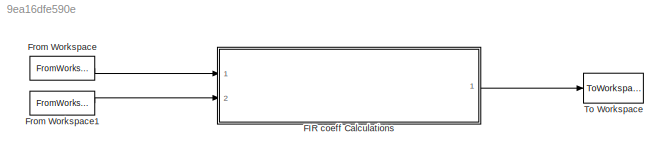
MODEL slx_9ea16dfe590e
KIND model
CONFIG AbsTol = auto
CONFIG EnableMultiTasking = off
CONFIG FixedStep = auto
CONFIG InitFcn = block_verScript;
CONFIG MaxStep = auto
CONFIG MinStep = auto
CONFIG RelTol = 1e-3
CONFIG SampleTimeConstraint = Unconstrained
CONFIG Solver = VariableStepAuto
CONFIG SolverName = VariableStepAuto
CONFIG StartTime = 0.0
CONFIG StopTime = (nSamp - 1)*Ts
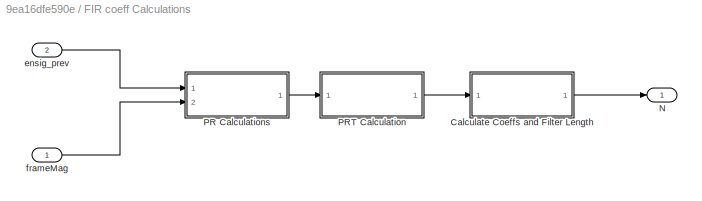
BLOCK [SubSystem] FIR coeff Calculations
  Ports = [2, 1]
  RequestExecContextInheritance = off
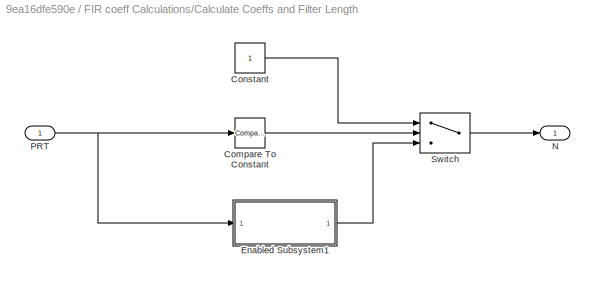
BLOCK [SubSystem] FIR coeff Calculations/Calculate Coeffs and Filter Length
  Ports = [1, 1]
  RequestExecContextInheritance = off
BLOCK [Reference] FIR coeff Calculations/Calculate Coeffs and Filter Length/Compare To Constant  REF=simulink/Logic and Bit
Operations/Compare
To Constant
  Ports = [1, 1]
  SourceBlock = simulink/Logic and Bit\nOperations/Compare\nTo Constant
  SourceProductBaseCode = SL
  SourceProductName = Simulink
  SourceType = Compare To Constant
BLOCK [Constant] FIR coeff Calculations/Calculate Coeffs and Filter Length/Constant
  SampleTime = -1
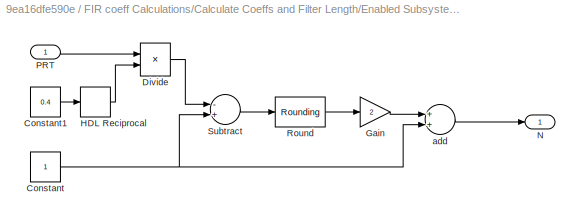
BLOCK [SubSystem] FIR coeff Calculations/Calculate Coeffs and Filter Length/Enabled Subsystem1
  Ports = [1, 1]
  RequestExecContextInheritance = off
  TreatAsAtomicUnit = on
BLOCK [Constant] FIR coeff Calculations/Calculate Coeffs and Filter Length/Enabled Subsystem1/Constant
  SampleTime = -1
BLOCK [Constant] FIR coeff Calculations/Calculate Coeffs and Filter Length/Enabled Subsystem1/Constant1
  SampleTime = -1
  Value = 0.4
BLOCK [Product] FIR coeff Calculations/Calculate Coeffs and Filter Length/Enabled Subsystem1/Divide
  InputSameDT = off
  Inputs = **
  OutDataTypeStr = Inherit: Inherit via internal rule
  Ports = [2, 1]
BLOCK [Gain] FIR coeff Calculations/Calculate Coeffs and Filter Length/Enabled Subsystem1/Gain
  Gain = 2
  OutDataTypeStr = Inherit: Inherit via internal rule
  ParamDataTypeStr = Inherit: Inherit via internal rule
  SaturateOnIntegerOverflow = off
BLOCK [Reciprocal] FIR coeff Calculations/Calculate Coeffs and Filter Length/Enabled Subsystem1/HDL Reciprocal
BLOCK [Outport] FIR coeff Calculations/Calculate Coeffs and Filter Length/Enabled Subsystem1/N
  IconDisplay = Port number
  InitialOutput = 0
BLOCK [Inport] FIR coeff Calculations/Calculate Coeffs and Filter Length/Enabled Subsystem1/PRT
  IconDisplay = Port number
BLOCK [Rounding] FIR coeff Calculations/Calculate Coeffs and Filter Length/Enabled Subsystem1/Round
  Operator = round
BLOCK [Sum] FIR coeff Calculations/Calculate Coeffs and Filter Length/Enabled Subsystem1/Subtract
  InputSameDT = off
  Inputs = -+
  OutDataTypeStr = Inherit: Inherit via internal rule
  Ports = [2, 1]
  SaturateOnIntegerOverflow = off
BLOCK [Sum] FIR coeff Calculations/Calculate Coeffs and Filter Length/Enabled Subsystem1/add
  InputSameDT = off
  OutDataTypeStr = Inherit: Inherit via internal rule
  Ports = [2, 1]
  SaturateOnIntegerOverflow = off
BLOCK [Outport] FIR coeff Calculations/Calculate Coeffs and Filter Length/N
  IconDisplay = Port number
BLOCK [Inport] FIR coeff Calculations/Calculate Coeffs and Filter Length/PRT
  IconDisplay = Port number
BLOCK [Switch] FIR coeff Calculations/Calculate Coeffs and Filter Length/Switch
  Criteria = u2 > Threshold
  InputSameDT = off
  SaturateOnIntegerOverflow = off
BLOCK [Outport] FIR coeff Calculations/N
  IconDisplay = Port number
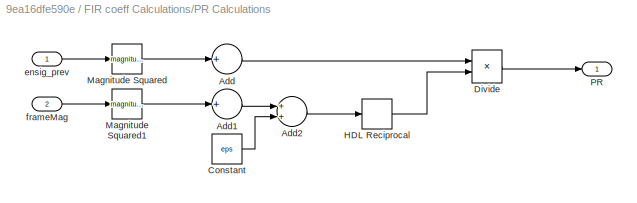
BLOCK [SubSystem] FIR coeff Calculations/PR Calculations
  Ports = [2, 1]
  RequestExecContextInheritance = off
BLOCK [Sum] FIR coeff Calculations/PR Calculations/Add
  InputSameDT = off
  Inputs = +
  OutDataTypeStr = Inherit: Inherit via internal rule
  Ports = [1, 1]
  SaturateOnIntegerOverflow = off
BLOCK [Sum] FIR coeff Calculations/PR Calculations/Add1
  InputSameDT = off
  Inputs = +
  OutDataTypeStr = Inherit: Inherit via internal rule
  Ports = [1, 1]
  SaturateOnIntegerOverflow = off
BLOCK [Sum] FIR coeff Calculations/PR Calculations/Add2
  InputSameDT = off
  OutDataTypeStr = Inherit: Inherit via internal rule
  Ports = [2, 1]
  SaturateOnIntegerOverflow = off
BLOCK [Constant] FIR coeff Calculations/PR Calculations/Constant
  SampleTime = -1
  Value = eps
BLOCK [Product] FIR coeff Calculations/PR Calculations/Divide
  InputSameDT = off
  Inputs = **
  OutDataTypeStr = Inherit: Inherit via internal rule
  Ports = [2, 1]
BLOCK [Reciprocal] FIR coeff Calculations/PR Calculations/HDL Reciprocal
BLOCK [Math] FIR coeff Calculations/PR Calculations/Magnitude Squared
  Operator = magnitude^2
  Ports = [1, 1]
BLOCK [Math] FIR coeff Calculations/PR Calculations/Magnitude Squared1
  Operator = magnitude^2
  Ports = [1, 1]
BLOCK [Outport] FIR coeff Calculations/PR Calculations/PR
  IconDisplay = Port number
BLOCK [Inport] FIR coeff Calculations/PR Calculations/ensig_prev
  IconDisplay = Port number
BLOCK [Inport] FIR coeff Calculations/PR Calculations/frameMag
  IconDisplay = Port number
  Port = 2
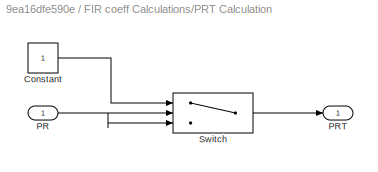
BLOCK [SubSystem] FIR coeff Calculations/PRT Calculation
  Ports = [1, 1]
  RequestExecContextInheritance = off
BLOCK [Constant] FIR coeff Calculations/PRT Calculation/Constant
  SampleTime = -1
BLOCK [Inport] FIR coeff Calculations/PRT Calculation/PR
  IconDisplay = Port number
BLOCK [Outport] FIR coeff Calculations/PRT Calculation/PRT
  IconDisplay = Port number
BLOCK [Switch] FIR coeff Calculations/PRT Calculation/Switch
  InputSameDT = off
  SaturateOnIntegerOverflow = off
  Threshold = 0.4
BLOCK [Inport] FIR coeff Calculations/ensig_prev
  IconDisplay = Port number
  Port = 2
BLOCK [Inport] FIR coeff Calculations/frameMag
  IconDisplay = Port number
BLOCK [FromWorkspace] From Workspace
  SampleTime = Ts
  VariableName = frameMagSim
  ZeroCross = on
BLOCK [FromWorkspace] From Workspace1
  SampleTime = Ts
  VariableName = ensigSim
  ZeroCross = on
BLOCK [ToWorkspace] To Workspace
  FixptAsFi = on
  MaxDataPoints = inf
  Ports = [1]
  SampleTime = -1
  SaveFormat = Timeseries
  VariableName = N_Out
LINE FIR coeff Calculations/Calculate Coeffs and Filter Length/Compare To Constant:1 -> FIR coeff Calculations/Calculate Coeffs and Filter Length/Switch:2
LINE FIR coeff Calculations/Calculate Coeffs and Filter Length/Constant:1 -> FIR coeff Calculations/Calculate Coeffs and Filter Length/Switch:1
LINE FIR coeff Calculations/Calculate Coeffs and Filter Length/Enabled Subsystem1/Constant1:1 -> FIR coeff Calculations/Calculate Coeffs and Filter Length/Enabled Subsystem1/HDL Reciprocal:1
NET FIR coeff Calculations/Calculate Coeffs and Filter Length/Enabled Subsystem1/Constant:1 -> FIR coeff Calculations/Calculate Coeffs and Filter Length/Enabled Subsystem1/Subtract:2, FIR coeff Calculations/Calculate Coeffs and Filter Length/Enabled Subsystem1/add:2
LINE FIR coeff Calculations/Calculate Coeffs and Filter Length/Enabled Subsystem1/Divide:1 -> FIR coeff Calculations/Calculate Coeffs and Filter Length/Enabled Subsystem1/Subtract:1
LINE FIR coeff Calculations/Calculate Coeffs and Filter Length/Enabled Subsystem1/Gain:1 -> FIR coeff Calculations/Calculate Coeffs and Filter Length/Enabled Subsystem1/add:1
LINE FIR coeff Calculations/Calculate Coeffs and Filter Length/Enabled Subsystem1/HDL Reciprocal:1 -> FIR coeff Calculations/Calculate Coeffs and Filter Length/Enabled Subsystem1/Divide:2
LINE FIR coeff Calculations/Calculate Coeffs and Filter Length/Enabled Subsystem1/PRT:1 -> FIR coeff Calculations/Calculate Coeffs and Filter Length/Enabled Subsystem1/Divide:1
LINE FIR coeff Calculations/Calculate Coeffs and Filter Length/Enabled Subsystem1/Round:1 -> FIR coeff Calculations/Calculate Coeffs and Filter Length/Enabled Subsystem1/Gain:1
LINE FIR coeff Calculations/Calculate Coeffs and Filter Length/Enabled Subsystem1/Subtract:1 -> FIR coeff Calculations/Calculate Coeffs and Filter Length/Enabled Subsystem1/Round:1
LINE FIR coeff Calculations/Calculate Coeffs and Filter Length/Enabled Subsystem1/add:1 -> FIR coeff Calculations/Calculate Coeffs and Filter Length/Enabled Subsystem1/N:1
LINE FIR coeff Calculations/Calculate Coeffs and Filter Length/Enabled Subsystem1:1 -> FIR coeff Calculations/Calculate Coeffs and Filter Length/Switch:3
NET FIR coeff Calculations/Calculate Coeffs and Filter Length/PRT:1 -> FIR coeff Calculations/Calculate Coeffs and Filter Length/Compare To Constant:1, FIR coeff Calculations/Calculate Coeffs and Filter Length/Enabled Subsystem1:1
LINE FIR coeff Calculations/Calculate Coeffs and Filter Length/Switch:1 -> FIR coeff Calculations/Calculate Coeffs and Filter Length/N:1
LINE FIR coeff Calculations/Calculate Coeffs and Filter Length:1 -> FIR coeff Calculations/N:1
LINE FIR coeff Calculations/PR Calculations/Add1:1 -> FIR coeff Calculations/PR Calculations/Add2:1
LINE FIR coeff Calculations/PR Calculations/Add2:1 -> FIR coeff Calculations/PR Calculations/HDL Reciprocal:1
LINE FIR coeff Calculations/PR Calculations/Add:1 -> FIR coeff Calculations/PR Calculations/Divide:1
LINE FIR coeff Calculations/PR Calculations/Constant:1 -> FIR coeff Calculations/PR Calculations/Add2:2
LINE FIR coeff Calculations/PR Calculations/Divide:1 -> FIR coeff Calculations/PR Calculations/PR:1
LINE FIR coeff Calculations/PR Calculations/HDL Reciprocal:1 -> FIR coeff Calculations/PR Calculations/Divide:2
LINE FIR coeff Calculations/PR Calculations/Magnitude Squared1:1 -> FIR coeff Calculations/PR Calculations/Add1:1
LINE FIR coeff Calculations/PR Calculations/Magnitude Squared:1 -> FIR coeff Calculations/PR Calculations/Add:1
LINE FIR coeff Calculations/PR Calculations/ensig_prev:1 -> FIR coeff Calculations/PR Calculations/Magnitude Squared:1
LINE FIR coeff Calculations/PR Calculations/frameMag:1 -> FIR coeff Calculations/PR Calculations/Magnitude Squared1:1
LINE FIR coeff Calculations/PR Calculations:1 -> FIR coeff Calculations/PRT Calculation:1
LINE FIR coeff Calculations/PRT Calculation/Constant:1 -> FIR coeff Calculations/PRT Calculation/Switch:1
NET FIR coeff Calculations/PRT Calculation/PR:1 -> FIR coeff Calculations/PRT Calculation/Switch:2, FIR coeff Calculations/PRT Calculation/Switch:3
LINE FIR coeff Calculations/PRT Calculation/Switch:1 -> FIR coeff Calculations/PRT Calculation/PRT:1
LINE FIR coeff Calculations/PRT Calculation:1 -> FIR coeff Calculations/Calculate Coeffs and Filter Length:1
LINE FIR coeff Calculations/ensig_prev:1 -> FIR coeff Calculations/PR Calculations:1
LINE FIR coeff Calculations/frameMag:1 -> FIR coeff Calculations/PR Calculations:2
LINE FIR coeff Calculations:1 -> To Workspace:1
LINE From Workspace1:1 -> FIR coeff Calculations:2
LINE From Workspace:1 -> FIR coeff Calculations:1
note: NET lines group one-source signal fan-out (src -> all destinations, sorted); 1:1 wires keep LINE
